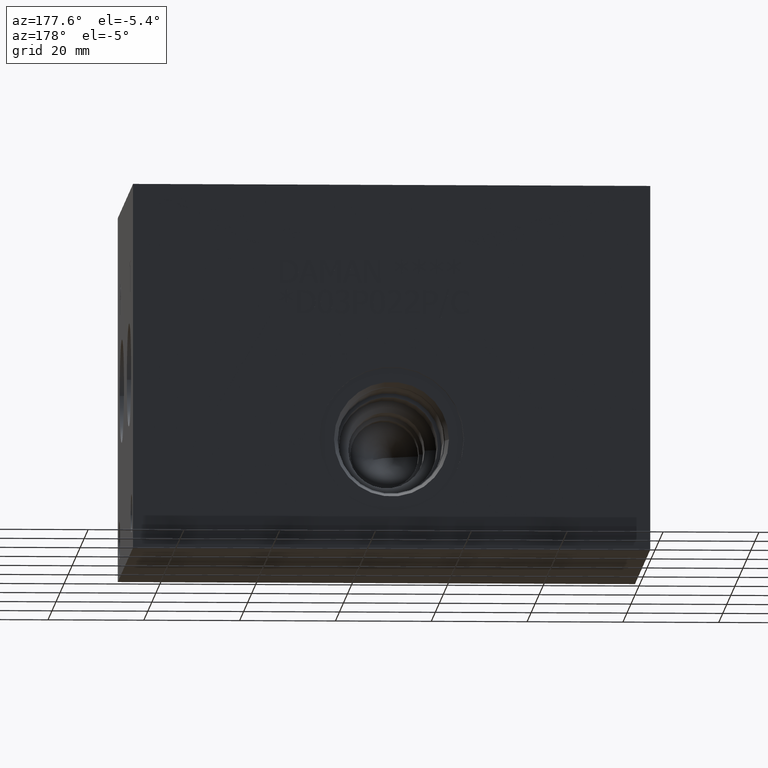
[diagram: clean part render]
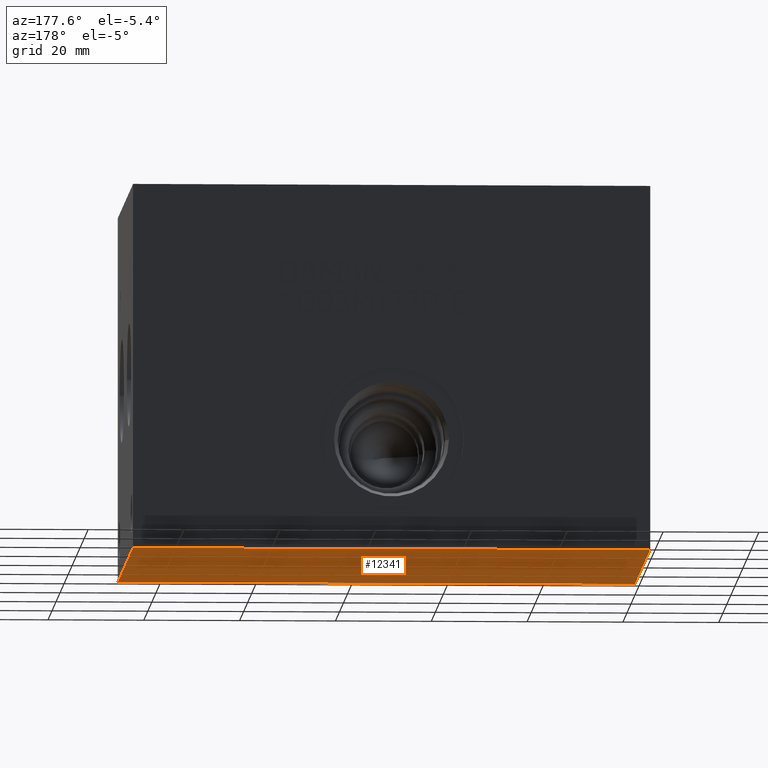
[diagram: same view with one face highlighted and labeled with its STEP entity id]
A machine part, auxiliary view. The second image highlights one B-rep face of the part: STEP entity #12341.
In plain terms, the highlighted planar face has unit normal (0, 0, 1).
Its self-contained STEP definition (entity closure, byte-faithful):
#1587=FACE_OUTER_BOUND('',#2321,.T.);
#2321=EDGE_LOOP('',(#10862,#10863,#10864,#10865));
#2631=LINE('',#17968,#3765);
#3068=LINE('',#19136,#4202);
#3127=LINE('',#19408,#4261);
#3163=LINE('',#19496,#4297);
#3765=VECTOR('',#13513,10.);
#4202=VECTOR('',#14270,10.);
#4261=VECTOR('',#14383,10.);
#4297=VECTOR('',#14461,10.);
#4936=VERTEX_POINT('',#17966);
#4937=VERTEX_POINT('',#17967);
#5252=VERTEX_POINT('',#19135);
#5310=VERTEX_POINT('',#19407);
#6282=EDGE_CURVE('',#4936,#4937,#2631,.T.);
#6753=EDGE_CURVE('',#5252,#4936,#3068,.T.);
#6836=EDGE_CURVE('',#4937,#5310,#3127,.T.);
#6880=EDGE_CURVE('',#5310,#5252,#3163,.T.);
#10862=ORIENTED_EDGE('',*,*,#6880,.F.);
#10863=ORIENTED_EDGE('',*,*,#6836,.F.);
#10864=ORIENTED_EDGE('',*,*,#6282,.F.);
#10865=ORIENTED_EDGE('',*,*,#6753,.F.);
#11224=PLANE('',#13041);
#12341=ADVANCED_FACE('',(#1587),#11224,.F.);
#13041=AXIS2_PLACEMENT_3D('',#21279,#15548,#15549);
#13513=DIRECTION('',(-1.,0.,0.));
#14270=DIRECTION('',(0.,1.,0.));
#14383=DIRECTION('',(0.,-1.,0.));
#14461=DIRECTION('',(1.,0.,0.));
#15548=DIRECTION('center_axis',(0.,0.,1.));
#15549=DIRECTION('ref_axis',(1.,0.,0.));
#17966=CARTESIAN_POINT('',(107.95,76.2,0.));
#17967=CARTESIAN_POINT('',(0.,76.2,0.));
#17968=CARTESIAN_POINT('',(107.95,76.2,0.));
#19135=CARTESIAN_POINT('',(107.95,0.,0.));
#19136=CARTESIAN_POINT('',(107.95,0.,0.));
#19407=CARTESIAN_POINT('',(0.,0.,0.));
#19408=CARTESIAN_POINT('',(0.,76.2,0.));
#19496=CARTESIAN_POINT('',(0.,0.,0.));
#21279=CARTESIAN_POINT('Origin',(53.975,38.1,0.));